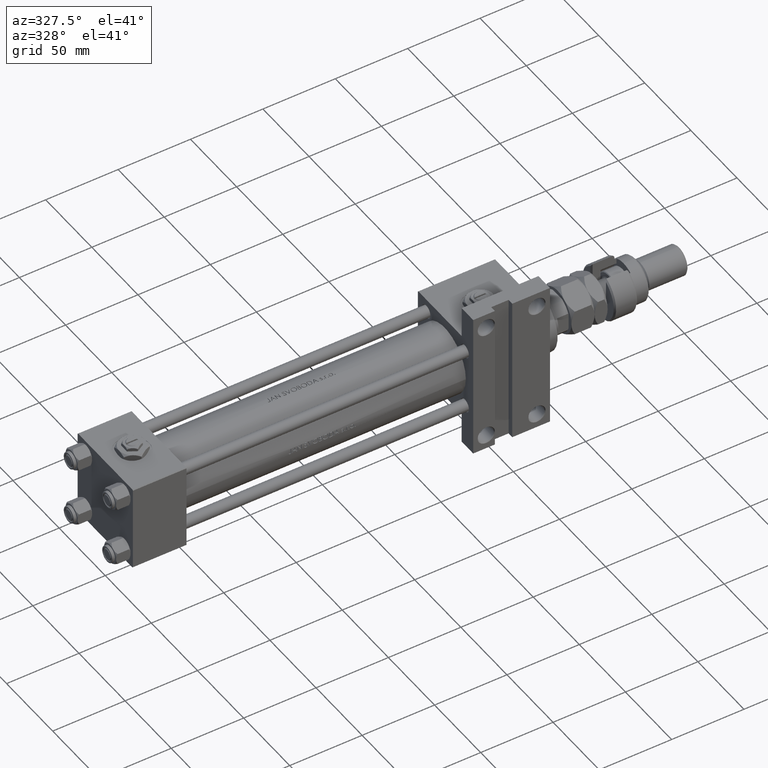
[diagram: clean part render]
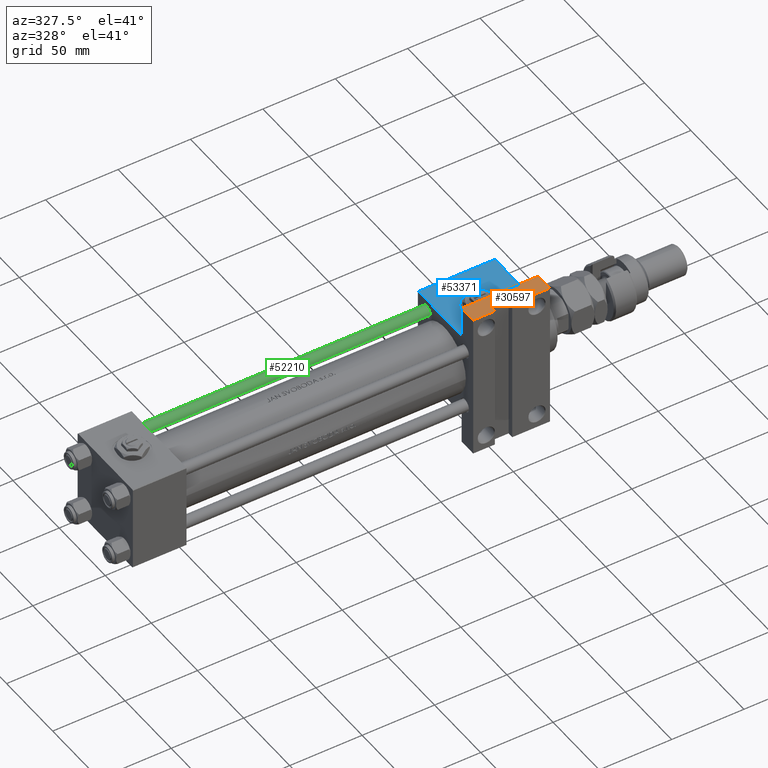
[diagram: same view with three faces highlighted in distinct colors, each labeled with its STEP entity id]
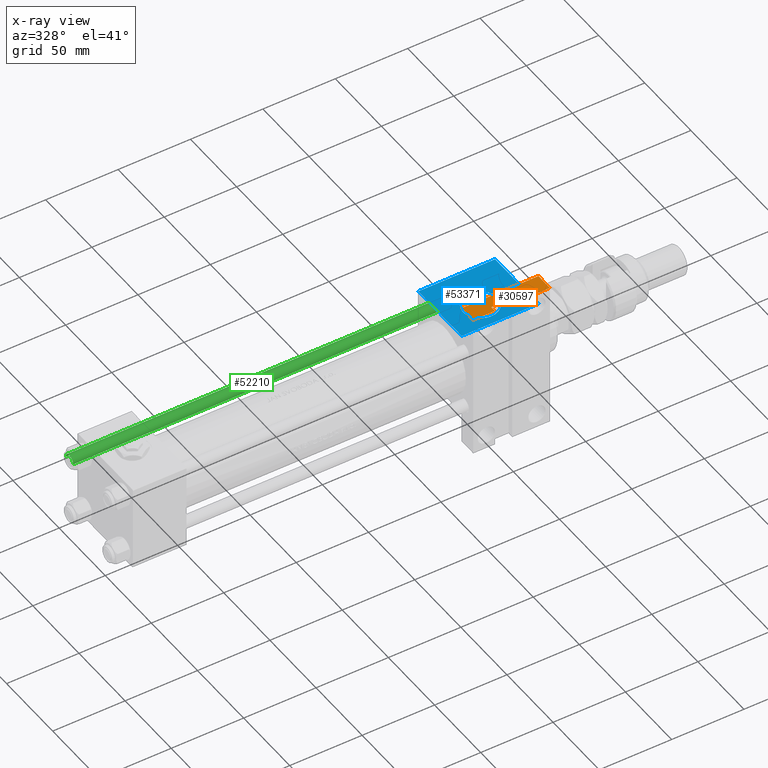
[diagram: x-ray of the same camera — body ghosted, the three highlighted faces saturated]
A machine part, auxiliary view with three faces highlighted in distinct colors.
The next image is the same camera in x-ray (body ghosted, the three faces saturated) — at least one of them is partly hidden behind the body in this view.
Their STEP definitions:

[orange] entity #30597 — the highlighted planar face has unit normal (0, 0, 1).
#565 = CARTESIAN_POINT ( 'NONE',  ( 235.0000000000000284, -51.50000000000002132, -17.49999999999999645 ) ) ;
#870 = VERTEX_POINT ( 'NONE', #10176 ) ;
#1888 = DIRECTION ( 'NONE',  ( 0.000000000000000000, -1.000000000000000000, 0.000000000000000000 ) ) ;
#2513 = VECTOR ( 'NONE', #9058, 1000.000000000000000 ) ;
#3470 = CARTESIAN_POINT ( 'NONE',  ( 262.0000000000000000, -51.50000000000002132, -25.99999999999999645 ) ) ;
#3539 = ORIENTED_EDGE ( 'NONE', *, *, #20357, .T. ) ;
#3551 = LINE ( 'NONE', #53429, #5057 ) ;
#4299 = CARTESIAN_POINT ( 'NONE',  ( 235.0000000000000284, -51.50000000000002132, -29.99999999999999645 ) ) ;
#4339 = DIRECTION ( 'NONE',  ( 0.000000000000000000, 0.000000000000000000, -1.000000000000000000 ) ) ;
#5057 = VECTOR ( 'NONE', #4339, 1000.000000000000000 ) ;
#5934 = PLANE ( 'NONE',  #32742 ) ;
#7656 = ORIENTED_EDGE ( 'NONE', *, *, #42433, .F. ) ;
#7835 = ORIENTED_EDGE ( 'NONE', *, *, #14174, .F. ) ;
#8073 = LINE ( 'NONE', #16203, #48852 ) ;
#8619 = DIRECTION ( 'NONE',  ( -1.000000000000000000, -0.000000000000000000, -0.000000000000000000 ) ) ;
#8904 = VERTEX_POINT ( 'NONE', #34171 ) ;
#9027 = EDGE_CURVE ( 'NONE', #50739, #8904, #8073, .T. ) ;
#9058 = DIRECTION ( 'NONE',  ( 0.000000000000000000, 0.000000000000000000, -1.000000000000000000 ) ) ;
#9790 = CARTESIAN_POINT ( 'NONE',  ( 262.0000000000000000, -51.49999999999997868, -25.99999999999999645 ) ) ;
#10176 = CARTESIAN_POINT ( 'NONE',  ( 235.0000000000000284, -51.50000000000002132, -17.49999999999999645 ) ) ;
#10962 = VERTEX_POINT ( 'NONE', #16286 ) ;
#12647 = CARTESIAN_POINT ( 'NONE',  ( 235.0000000000000284, -51.50000000000002132, -29.99999999999999645 ) ) ;
#13461 = DIRECTION ( 'NONE',  ( -1.000000000000000000, -0.000000000000000000, -0.000000000000000000 ) ) ;
#14174 = EDGE_CURVE ( 'NONE', #47189, #33154, #25644, .T. ) ;
#14808 = EDGE_CURVE ( 'NONE', #10962, #40119, #30111, .T. ) ;
#16191 = EDGE_LOOP ( 'NONE', ( #35156, #7835, #41247, #24360, #3539, #35575, #7656, #40290 ) ) ;
#16203 = CARTESIAN_POINT ( 'NONE',  ( 250.0000000000000568, -51.49999999999997868, -25.99999999999999645 ) ) ;
#16286 = CARTESIAN_POINT ( 'NONE',  ( 250.0000000000000568, -51.49999999999997868, -29.99999999999999645 ) ) ;
#17104 = DIRECTION ( 'NONE',  ( -0.000000000000000000, -0.000000000000000000, -1.000000000000000000 ) ) ;
#18389 = DIRECTION ( 'NONE',  ( 0.000000000000000000, -0.000000000000000000, -1.000000000000000000 ) ) ;
#18702 = DIRECTION ( 'NONE',  ( -1.000000000000000000, -0.000000000000000000, -0.000000000000000000 ) ) ;
#19028 = VERTEX_POINT ( 'NONE', #23447 ) ;
#20357 = EDGE_CURVE ( 'NONE', #870, #40119, #21247, .T. ) ;
#21247 = LINE ( 'NONE', #29661, #2513 ) ;
#23447 = CARTESIAN_POINT ( 'NONE',  ( 288.0000000000000568, -51.50000000000002132, -17.49999999999999645 ) ) ;
#24360 = ORIENTED_EDGE ( 'NONE', *, *, #44840, .T. ) ;
#25644 = LINE ( 'NONE', #12647, #28224 ) ;
#25728 = LINE ( 'NONE', #565, #39242 ) ;
#25763 = VECTOR ( 'NONE', #17104, 1000.000000000000000 ) ;
#26164 = CARTESIAN_POINT ( 'NONE',  ( 262.0000000000000000, -51.49999999999997868, -29.99999999999999645 ) ) ;
#27282 = CARTESIAN_POINT ( 'NONE',  ( 250.0000000000000568, -51.49999999999997868, -25.99999999999999645 ) ) ;
#28224 = VECTOR ( 'NONE', #13461, 1000.000000000000000 ) ;
#28347 = LINE ( 'NONE', #27282, #45207 ) ;
#29661 = CARTESIAN_POINT ( 'NONE',  ( 235.0000000000000284, -51.50000000000002132, -17.49999999999999645 ) ) ;
#30051 = EDGE_CURVE ( 'NONE', #50739, #33154, #30401, .T. ) ;
#30111 = LINE ( 'NONE', #47205, #30829 ) ;
#30401 = LINE ( 'NONE', #9790, #25763 ) ;
#30597 = ADVANCED_FACE ( 'NONE', ( #43081 ), #5934, .T. ) ;
#30829 = VECTOR ( 'NONE', #18702, 1000.000000000000000 ) ;
#31230 = EDGE_CURVE ( 'NONE', #19028, #47189, #3551, .T. ) ;
#31900 = DIRECTION ( 'NONE',  ( -0.000000000000000000, -0.000000000000000000, -1.000000000000000000 ) ) ;
#32742 = AXIS2_PLACEMENT_3D ( 'NONE', #39001, #1888, #18389 ) ;
#32976 = CARTESIAN_POINT ( 'NONE',  ( 288.0000000000000568, -51.50000000000002132, -29.99999999999999645 ) ) ;
#33154 = VERTEX_POINT ( 'NONE', #26164 ) ;
#34171 = CARTESIAN_POINT ( 'NONE',  ( 250.0000000000000568, -51.49999999999997868, -25.99999999999999645 ) ) ;
#35156 = ORIENTED_EDGE ( 'NONE', *, *, #30051, .T. ) ;
#35575 = ORIENTED_EDGE ( 'NONE', *, *, #14808, .F. ) ;
#39001 = CARTESIAN_POINT ( 'NONE',  ( 235.0000000000000284, -51.50000000000002132, -17.49999999999999645 ) ) ;
#39242 = VECTOR ( 'NONE', #45826, 1000.000000000000000 ) ;
#40119 = VERTEX_POINT ( 'NONE', #4299 ) ;
#40290 = ORIENTED_EDGE ( 'NONE', *, *, #9027, .F. ) ;
#41247 = ORIENTED_EDGE ( 'NONE', *, *, #31230, .F. ) ;
#42433 = EDGE_CURVE ( 'NONE', #8904, #10962, #28347, .T. ) ;
#43081 = FACE_OUTER_BOUND ( 'NONE', #16191, .T. ) ;
#44840 = EDGE_CURVE ( 'NONE', #19028, #870, #25728, .T. ) ;
#45207 = VECTOR ( 'NONE', #31900, 1000.000000000000000 ) ;
#45826 = DIRECTION ( 'NONE',  ( -1.000000000000000000, -0.000000000000000000, -0.000000000000000000 ) ) ;
#47189 = VERTEX_POINT ( 'NONE', #32976 ) ;
#47205 = CARTESIAN_POINT ( 'NONE',  ( 235.0000000000000284, -51.50000000000002132, -29.99999999999999645 ) ) ;
#48852 = VECTOR ( 'NONE', #8619, 1000.000000000000000 ) ;
#50739 = VERTEX_POINT ( 'NONE', #3470 ) ;
#53429 = CARTESIAN_POINT ( 'NONE',  ( 288.0000000000000568, -51.50000000000002132, -17.49999999999999645 ) ) ;

[blue] entity #53371 — the highlighted planar face has unit normal (0, 0, -1).
#1022 = LINE ( 'NONE', #43279, #27681 ) ;
#1277 = DIRECTION ( 'NONE',  ( -0.000000000000000000, 1.000000000000000000, 0.000000000000000000 ) ) ;
#1545 = FACE_BOUND ( 'NONE', #26705, .T. ) ;
#1846 = EDGE_CURVE ( 'NONE', #21933, #4972, #20460, .T. ) ;
#2346 = CARTESIAN_POINT ( 'NONE',  ( 288.0000000000000568, -30.00000000000000000, 29.99999999999999289 ) ) ;
#2618 = EDGE_CURVE ( 'NONE', #37435, #17845, #5683, .T. ) ;
#3760 = CARTESIAN_POINT ( 'NONE',  ( 259.0000000000000000, -30.00000000000000000, 0.000000000000000000 ) ) ;
#4972 = VERTEX_POINT ( 'NONE', #39478 ) ;
#5340 = DIRECTION ( 'NONE',  ( -1.000000000000000000, 0.000000000000000000, 0.000000000000000000 ) ) ;
#5683 = LINE ( 'NONE', #22734, #11436 ) ;
#5854 = FACE_OUTER_BOUND ( 'NONE', #21147, .T. ) ;
#9182 = ORIENTED_EDGE ( 'NONE', *, *, #23717, .F. ) ;
#9220 = CARTESIAN_POINT ( 'NONE',  ( 259.0000000000000000, -30.00000000000000000, 0.000000000000000000 ) ) ;
#11436 = VECTOR ( 'NONE', #30080, 1000.000000000000000 ) ;
#12586 = LINE ( 'NONE', #32665, #45554 ) ;
#15209 = ORIENTED_EDGE ( 'NONE', *, *, #42022, .F. ) ;
#16796 = DIRECTION ( 'NONE',  ( 0.000000000000000000, -1.000000000000000000, -8.673617379884036705E-17 ) ) ;
#17314 = CIRCLE ( 'NONE', #47656, 12.00000000000003197 ) ;
#17845 = VERTEX_POINT ( 'NONE', #31455 ) ;
#18639 = AXIS2_PLACEMENT_3D ( 'NONE', #2346, #1277, #26177 ) ;
#19737 = DIRECTION ( 'NONE',  ( 0.000000000000000000, -1.000000000000000000, -8.673617379884036705E-17 ) ) ;
#20460 = LINE ( 'NONE', #36739, #31376 ) ;
#21147 = EDGE_LOOP ( 'NONE', ( #45910, #23030, #33898, #42476 ) ) ;
#21933 = VERTEX_POINT ( 'NONE', #23787 ) ;
#22734 = CARTESIAN_POINT ( 'NONE',  ( 235.0000000000000284, -30.00000000000000000, 29.99999999999999289 ) ) ;
#23030 = ORIENTED_EDGE ( 'NONE', *, *, #29230, .T. ) ;
#23717 = EDGE_CURVE ( 'NONE', #27481, #50049, #17314, .T. ) ;
#23787 = CARTESIAN_POINT ( 'NONE',  ( 288.0000000000000568, -30.00000000000000000, 29.49999999999993605 ) ) ;
#25738 = DIRECTION ( 'NONE',  ( 0.000000000000000000, 0.000000000000000000, -1.000000000000000000 ) ) ;
#26175 = CARTESIAN_POINT ( 'NONE',  ( 259.0000000000000000, -30.00000000000000000, -12.00000000000003197 ) ) ;
#26177 = DIRECTION ( 'NONE',  ( 0.000000000000000000, -0.000000000000000000, 1.000000000000000000 ) ) ;
#26705 = EDGE_LOOP ( 'NONE', ( #15209, #9182 ) ) ;
#27481 = VERTEX_POINT ( 'NONE', #44507 ) ;
#27681 = VECTOR ( 'NONE', #5340, 1000.000000000000000 ) ;
#29230 = EDGE_CURVE ( 'NONE', #21933, #37435, #1022, .T. ) ;
#30080 = DIRECTION ( 'NONE',  ( 0.000000000000000000, 0.000000000000000000, -1.000000000000000000 ) ) ;
#31376 = VECTOR ( 'NONE', #53300, 1000.000000000000000 ) ;
#31455 = CARTESIAN_POINT ( 'NONE',  ( 235.0000000000000284, -30.00000000000000000, -17.49999999999999645 ) ) ;
#32406 = DIRECTION ( 'NONE',  ( 1.000000000000000000, -1.309225264888155637E-16, 0.000000000000000000 ) ) ;
#32665 = CARTESIAN_POINT ( 'NONE',  ( 235.0000000000000284, -30.00000000000000000, -17.49999999999999645 ) ) ;
#33341 = CARTESIAN_POINT ( 'NONE',  ( 235.0000000000000284, -30.00000000000000000, 29.49999999999993605 ) ) ;
#33898 = ORIENTED_EDGE ( 'NONE', *, *, #2618, .T. ) ;
#36739 = CARTESIAN_POINT ( 'NONE',  ( 288.0000000000000568, -30.00000000000000000, 29.99999999999999289 ) ) ;
#37435 = VERTEX_POINT ( 'NONE', #33341 ) ;
#39463 = PLANE ( 'NONE',  #18639 ) ;
#39478 = CARTESIAN_POINT ( 'NONE',  ( 288.0000000000000568, -30.00000000000000000, -17.49999999999998224 ) ) ;
#42022 = EDGE_CURVE ( 'NONE', #50049, #27481, #48674, .T. ) ;
#42476 = ORIENTED_EDGE ( 'NONE', *, *, #51193, .T. ) ;
#43279 = CARTESIAN_POINT ( 'NONE',  ( 288.0000000000000568, -30.00000000000000000, 29.49999999999993605 ) ) ;
#44160 = DIRECTION ( 'NONE',  ( 0.000000000000000000, 0.000000000000000000, -1.000000000000000000 ) ) ;
#44507 = CARTESIAN_POINT ( 'NONE',  ( 259.0000000000000000, -30.00000000000000000, 12.00000000000003197 ) ) ;
#45554 = VECTOR ( 'NONE', #32406, 1000.000000000000000 ) ;
#45910 = ORIENTED_EDGE ( 'NONE', *, *, #1846, .F. ) ;
#46973 = AXIS2_PLACEMENT_3D ( 'NONE', #3760, #19737, #44160 ) ;
#47656 = AXIS2_PLACEMENT_3D ( 'NONE', #9220, #16796, #25738 ) ;
#48674 = CIRCLE ( 'NONE', #46973, 12.00000000000003197 ) ;
#50049 = VERTEX_POINT ( 'NONE', #26175 ) ;
#51193 = EDGE_CURVE ( 'NONE', #17845, #4972, #12586, .T. ) ;
#53300 = DIRECTION ( 'NONE',  ( 0.000000000000000000, 0.000000000000000000, -1.000000000000000000 ) ) ;
#53371 = ADVANCED_FACE ( 'NONE', ( #1545, #5854 ), #39463, .F. ) ;

[green] entity #52210 — the highlighted cylindrical surface (edge-blend (fillet) strip) has radius 4 mm, axis along (1, -0, 0).
#19 = DIRECTION ( 'NONE',  ( 1.000000000000000000, 0.000000000000000000, 0.000000000000000000 ) ) ;
#268 = ORIENTED_EDGE ( 'NONE', *, *, #18813, .F. ) ;
#3748 = CYLINDRICAL_SURFACE ( 'NONE', #28125, 4.000000000000000000 ) ;
#5072 = ORIENTED_EDGE ( 'NONE', *, *, #27520, .T. ) ;
#5468 = CARTESIAN_POINT ( 'NONE',  ( 4.000000000000000000, 4.898587196589412829E-16, 0.5000000000000559552 ) ) ;
#9113 = DIRECTION ( 'NONE',  ( -0.000000000000000000, -0.000000000000000000, -1.000000000000000000 ) ) ;
#10277 = AXIS2_PLACEMENT_3D ( 'NONE', #49373, #13016, #19 ) ;
#11057 = FACE_OUTER_BOUND ( 'NONE', #17732, .T. ) ;
#11525 = VERTEX_POINT ( 'NONE', #16368 ) ;
#13016 = DIRECTION ( 'NONE',  ( -0.000000000000000000, -0.000000000000000000, 1.000000000000000000 ) ) ;
#13175 = LINE ( 'NONE', #29718, #48482 ) ;
#13520 = CARTESIAN_POINT ( 'NONE',  ( 4.000000000000000000, 4.898587196589412829E-16, 261.5000000000000000 ) ) ;
#15105 = DIRECTION ( 'NONE',  ( -0.000000000000000000, -0.000000000000000000, -1.000000000000000000 ) ) ;
#16171 = DIRECTION ( 'NONE',  ( -1.000000000000000000, 0.000000000000000000, 0.000000000000000000 ) ) ;
#16368 = CARTESIAN_POINT ( 'NONE',  ( -4.000000000000000000, 0.000000000000000000, 261.5000000000000000 ) ) ;
#17732 = EDGE_LOOP ( 'NONE', ( #268, #45045, #26625, #5072 ) ) ;
#18808 = CARTESIAN_POINT ( 'NONE',  ( 0.000000000000000000, 0.000000000000000000, 261.5000000000000000 ) ) ;
#18813 = EDGE_CURVE ( 'NONE', #34762, #50600, #52284, .T. ) ;
#19992 = AXIS2_PLACEMENT_3D ( 'NONE', #18808, #43773, #39692 ) ;
#21267 = CARTESIAN_POINT ( 'NONE',  ( -4.000000000000000000, 0.000000000000000000, 0.5000000000000559552 ) ) ;
#23190 = EDGE_CURVE ( 'NONE', #34762, #11525, #36447, .T. ) ;
#25985 = VERTEX_POINT ( 'NONE', #21267 ) ;
#26625 = ORIENTED_EDGE ( 'NONE', *, *, #33878, .T. ) ;
#27520 = EDGE_CURVE ( 'NONE', #25985, #50600, #38848, .T. ) ;
#27591 = DIRECTION ( 'NONE',  ( -0.000000000000000000, -0.000000000000000000, -1.000000000000000000 ) ) ;
#28125 = AXIS2_PLACEMENT_3D ( 'NONE', #44692, #27591, #16171 ) ;
#29718 = CARTESIAN_POINT ( 'NONE',  ( -4.000000000000000000, 0.000000000000000000, 262.0000000000000000 ) ) ;
#32199 = CARTESIAN_POINT ( 'NONE',  ( 4.000000000000000000, 4.898587196589412829E-16, 262.0000000000000000 ) ) ;
#33878 = EDGE_CURVE ( 'NONE', #11525, #25985, #13175, .T. ) ;
#34762 = VERTEX_POINT ( 'NONE', #13520 ) ;
#35305 = VECTOR ( 'NONE', #15105, 1000.000000000000000 ) ;
#36447 = CIRCLE ( 'NONE', #19992, 4.000000000000000000 ) ;
#38848 = CIRCLE ( 'NONE', #10277, 4.000000000000000000 ) ;
#39692 = DIRECTION ( 'NONE',  ( 1.000000000000000000, 0.000000000000000000, 0.000000000000000000 ) ) ;
#43773 = DIRECTION ( 'NONE',  ( 0.000000000000000000, 0.000000000000000000, -1.000000000000000000 ) ) ;
#44692 = CARTESIAN_POINT ( 'NONE',  ( 0.000000000000000000, 0.000000000000000000, 262.0000000000000000 ) ) ;
#45045 = ORIENTED_EDGE ( 'NONE', *, *, #23190, .T. ) ;
#48482 = VECTOR ( 'NONE', #9113, 1000.000000000000000 ) ;
#49373 = CARTESIAN_POINT ( 'NONE',  ( 0.000000000000000000, 0.000000000000000000, 0.5000000000000559552 ) ) ;
#50600 = VERTEX_POINT ( 'NONE', #5468 ) ;
#52210 = ADVANCED_FACE ( 'NONE', ( #11057 ), #3748, .T. ) ;
#52284 = LINE ( 'NONE', #32199, #35305 ) ;